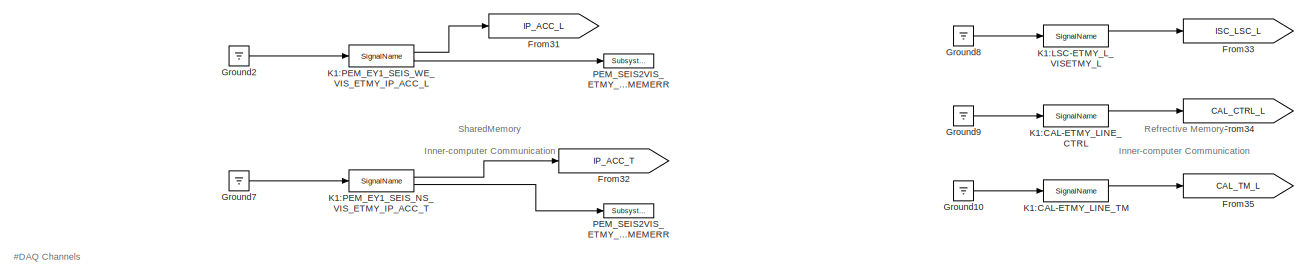
[diagram: root canvas - part 1/6, top center region]
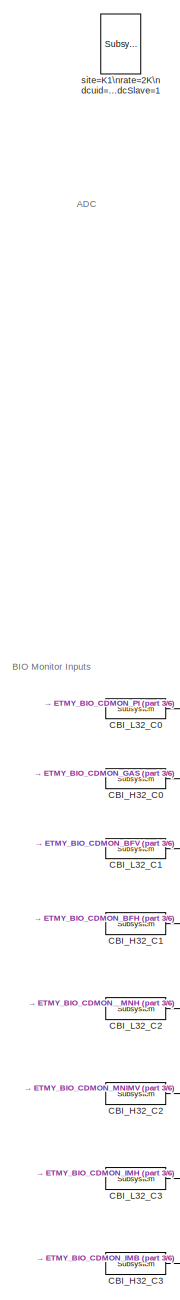
[diagram: root canvas - part 2/6, middle left region]
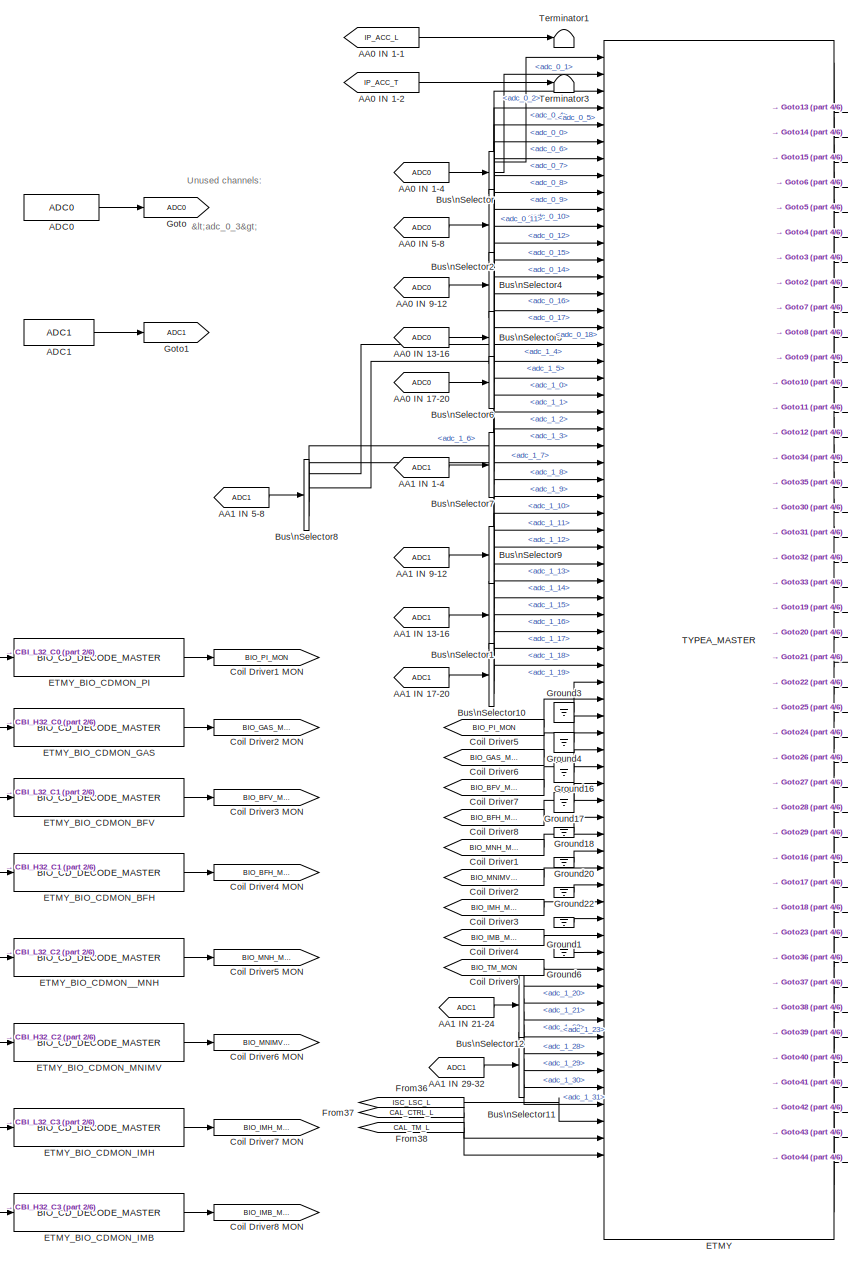
[diagram: root canvas - part 3/6, middle left region]
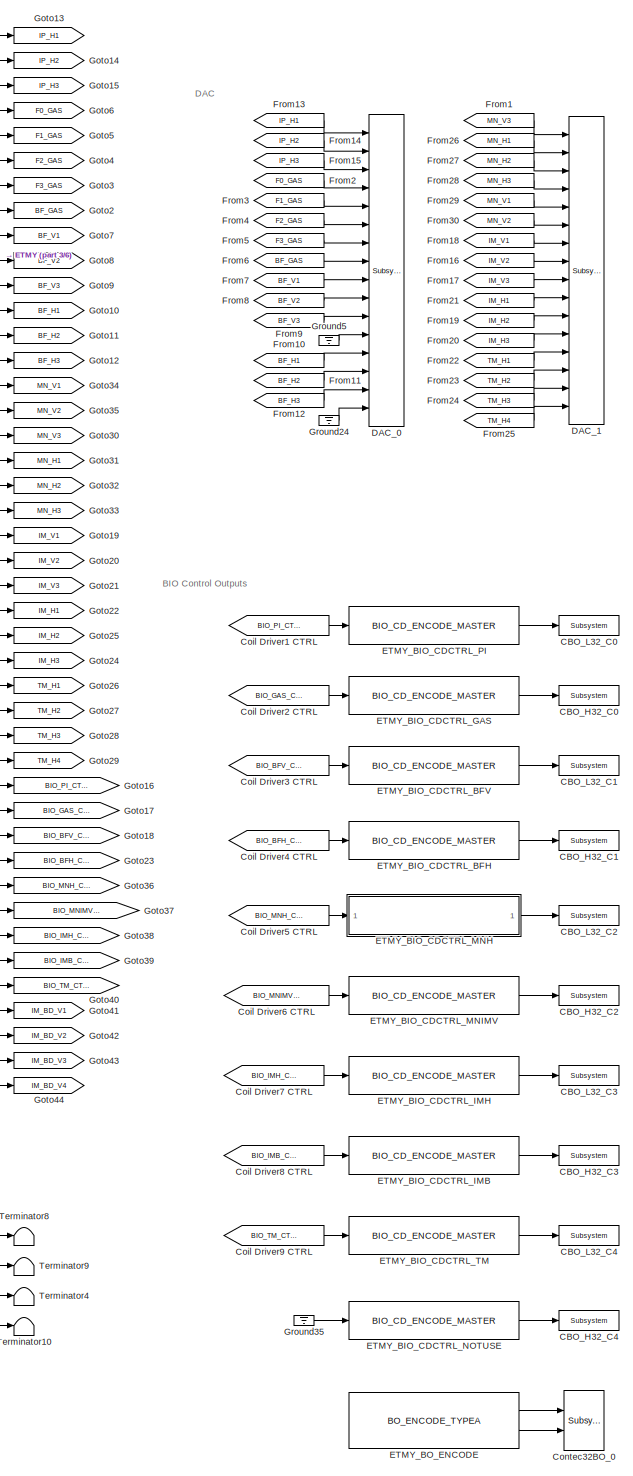
[diagram: root canvas - part 4/6, right side, full height]
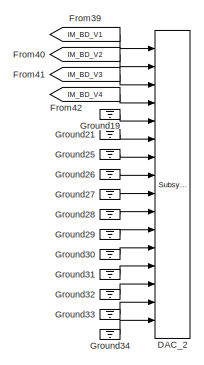
[diagram: root canvas - part 5/6, middle right region]
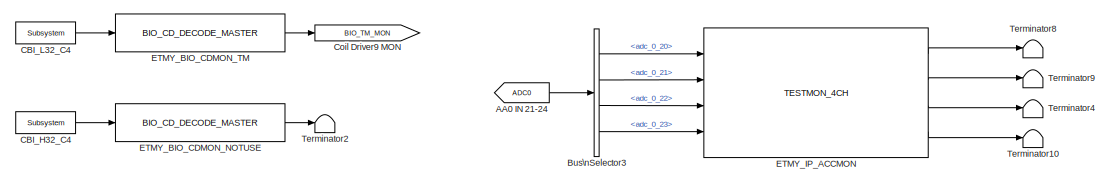
[diagram: root canvas - part 6/6, bottom left region]
MODEL k1visetmy
KIND model
BLOCK [From] AA0 IN 1-1
  GotoTag = IP_ACC_L
  SID = 843
BLOCK [From] AA0 IN 1-2
  GotoTag = IP_ACC_T
  SID = 844
BLOCK [From] AA0 IN 1-4
  GotoTag = ADC0
  SID = 126
BLOCK [From] AA0 IN 13-16
  GotoTag = ADC0
  SID = 184
BLOCK [From] AA0 IN 17-20
  GotoTag = ADC0
  SID = 190
BLOCK [From] AA0 IN 21-24
  GotoTag = ADC0
  SID = 287
BLOCK [From] AA0 IN 5-8
  GotoTag = ADC0
  SID = 182
BLOCK [From] AA0 IN 9-12
  GotoTag = ADC0
  SID = 186
BLOCK [From] AA1 IN 1-4
  GotoTag = ADC1
  SID = 488
BLOCK [From] AA1 IN 13-16
  GotoTag = ADC1
  SID = 536
BLOCK [From] AA1 IN 17-20
  GotoTag = ADC1
  SID = 537
BLOCK [From] AA1 IN 21-24
  GotoTag = ADC1
  SID = 826
BLOCK [From] AA1 IN 29-32
  GotoTag = ADC1
  SID = 803
BLOCK [From] AA1 IN 5-8
  GotoTag = ADC1
  SID = 489
BLOCK [From] AA1 IN 9-12
  GotoTag = ADC1
  SID = 490
BLOCK [Reference] ADC0  REF=cdsAdcx0/ADC0
  AttributesFormatString = %<Description>\\n%<Tag>
  Description = type-GSC_16AI64SSA\ncard_num=0
  Ports = [0, 1]
  SID = 51
  SourceBlock = cdsAdcx0/ADC0
  SourceType = SubSystem
  Tag = cdsAdc
BLOCK [Reference] ADC1  REF=cdsAdcx1/ADC1
  AttributesFormatString = %<Description>\\n%<Tag>
  Description = type-GSC_16AI64SSA\ncard_num=1
  Ports = [0, 1]
  SID = 111
  SourceBlock = cdsAdcx1/ADC1
  SourceType = SubSystem
  Tag = cdsAdc
BLOCK [BusSelector] Bus\nSelector
  OutputSignals = adc_0_0,adc_0_1,adc_0_2
  Ports = [1, 3]
  SID = 157
BLOCK [BusSelector] Bus\nSelector1
  OutputSignals = adc_1_12,adc_1_13,adc_1_14,adc_1_15
  Ports = [1, 4]
  SID = 534
BLOCK [BusSelector] Bus\nSelector10
  OutputSignals = adc_1_16,adc_1_17,adc_1_18,adc_1_19
  Ports = [1, 4]
  SID = 538
BLOCK [BusSelector] Bus\nSelector11
  OutputSignals = adc_1_28,adc_1_29,adc_1_30,adc_1_31
  Ports = [1, 4]
  SID = 805
BLOCK [BusSelector] Bus\nSelector12
  OutputSignals = adc_1_20,adc_1_21,adc_1_22,adc_1_23
  Ports = [1, 4]
  SID = 827
BLOCK [BusSelector] Bus\nSelector2
  OutputSignals = adc_0_4,adc_0_5,adc_0_6,adc_0_7
  Ports = [1, 4]
  SID = 183
BLOCK [BusSelector] Bus\nSelector3
  OutputSignals = adc_0_20,adc_0_21,adc_0_22,adc_0_23
  Ports = [1, 4]
  SID = 286
BLOCK [BusSelector] Bus\nSelector4
  OutputSignals = adc_0_8,adc_0_9,adc_0_10,adc_0_11
  Ports = [1, 4]
  SID = 187
BLOCK [BusSelector] Bus\nSelector5
  OutputSignals = adc_0_12,adc_0_15,adc_0_14
  Ports = [1, 3]
  SID = 189
BLOCK [BusSelector] Bus\nSelector6
  OutputSignals = adc_0_16,adc_0_17,adc_0_18
  Ports = [1, 3]
  SID = 191
BLOCK [BusSelector] Bus\nSelector7
  OutputSignals = adc_1_0,adc_1_1,adc_1_2,adc_1_3
  Ports = [1, 4]
  SID = 485
BLOCK [BusSelector] Bus\nSelector8
  OutputSignals = adc_1_4,adc_1_5,adc_1_6,adc_1_7
  Ports = [1, 4]
  SID = 486
BLOCK [BusSelector] Bus\nSelector9
  OutputSignals = adc_1_8,adc_1_9,adc_1_10,adc_1_11
  Ports = [1, 4]
  SID = 487
BLOCK [Reference] CBI_H32_C0  REF=cdsCDI64/Subsystem
  AttributesFormatString = %<Tag>\\n%<Description>
  Description = card_num=1
  Ports = [0, 1]
  SID = 130
  SourceBlock = cdsCDI64/Subsystem
  SourceType = SubSystem
  Tag = cdsCDI64
BLOCK [Reference] CBI_H32_C1  REF=cdsCDI64/Subsystem
  AttributesFormatString = %<Tag>\\n%<Description>
  Description = card_num=3
  Ports = [0, 1]
  SID = 225
  SourceBlock = cdsCDI64/Subsystem
  SourceType = SubSystem
  Tag = cdsCDI64
BLOCK [Reference] CBI_H32_C2  REF=cdsCDI64/Subsystem
  AttributesFormatString = %<Tag>\\n%<Description>
  Description = card_num=5
  Ports = [0, 1]
  SID = 563
  SourceBlock = cdsCDI64/Subsystem
  SourceType = SubSystem
  Tag = cdsCDI64
BLOCK [Reference] CBI_H32_C3  REF=cdsCDI64/Subsystem
  AttributesFormatString = %<Tag>\\n%<Description>
  Description = card_num=7
  Ports = [0, 1]
  SID = 606
  SourceBlock = cdsCDI64/Subsystem
  SourceType = SubSystem
  Tag = cdsCDI64
BLOCK [Reference] CBI_H32_C4  REF=cdsCDI64/Subsystem
  AttributesFormatString = %<Tag>\\n%<Description>
  Description = card_num=9
  Ports = [0, 1]
  SID = 609
  SourceBlock = cdsCDI64/Subsystem
  SourceType = SubSystem
  Tag = cdsCDI64
BLOCK [Reference] CBI_L32_C0  REF=cdsCDI64/Subsystem
  AttributesFormatString = %<Tag>\\n%<Description>
  Description = card_num=0
  Ports = [0, 1]
  SID = 131
  SourceBlock = cdsCDI64/Subsystem
  SourceType = SubSystem
  Tag = cdsCDI64
BLOCK [Reference] CBI_L32_C1  REF=cdsCDI64/Subsystem
  AttributesFormatString = %<Tag>\\n%<Description>
  Description = card_num=2
  Ports = [0, 1]
  SID = 226
  SourceBlock = cdsCDI64/Subsystem
  SourceType = SubSystem
  Tag = cdsCDI64
BLOCK [Reference] CBI_L32_C2  REF=cdsCDI64/Subsystem
  AttributesFormatString = %<Tag>\\n%<Description>
  Description = card_num=4
  Ports = [0, 1]
  SID = 562
  SourceBlock = cdsCDI64/Subsystem
  SourceType = SubSystem
  Tag = cdsCDI64
BLOCK [Reference] CBI_L32_C3  REF=cdsCDI64/Subsystem
  AttributesFormatString = %<Tag>\\n%<Description>
  Description = card_num=6
  Ports = [0, 1]
  SID = 605
  SourceBlock = cdsCDI64/Subsystem
  SourceType = SubSystem
  Tag = cdsCDI64
BLOCK [Reference] CBI_L32_C4  REF=cdsCDI64/Subsystem
  AttributesFormatString = %<Tag>\\n%<Description>
  Description = card_num=8
  Ports = [0, 1]
  SID = 607
  SourceBlock = cdsCDI64/Subsystem
  SourceType = SubSystem
  Tag = cdsCDI64
BLOCK [Reference] CBO_H32_C0  REF=cdsCDO64/Subsystem
  AttributesFormatString = %<Tag>\\n%<Description>
  Description = card_num=1
  Ports = [1]
  SID = 132
  SourceBlock = cdsCDO64/Subsystem
  SourceType = SubSystem
  Tag = cdsCDO64
BLOCK [Reference] CBO_H32_C1  REF=cdsCDO64/Subsystem
  AttributesFormatString = %<Tag>\\n%<Description>
  Description = card_num=3
  Ports = [1]
  SID = 227
  SourceBlock = cdsCDO64/Subsystem
  SourceType = SubSystem
  Tag = cdsCDO64
BLOCK [Reference] CBO_H32_C2  REF=cdsCDO64/Subsystem
  AttributesFormatString = %<Tag>\\n%<Description>
  Description = card_num=5
  Ports = [1]
  SID = 553
  SourceBlock = cdsCDO64/Subsystem
  SourceType = SubSystem
  Tag = cdsCDO64
BLOCK [Reference] CBO_H32_C3  REF=cdsCDO64/Subsystem
  AttributesFormatString = %<Tag>\\n%<Description>
  Description = card_num=7
  Ports = [1]
  SID = 615
  SourceBlock = cdsCDO64/Subsystem
  SourceType = SubSystem
  Tag = cdsCDO64
BLOCK [Reference] CBO_H32_C4  REF=cdsCDO64/Subsystem
  AttributesFormatString = %<Tag>\\n%<Description>
  Description = card_num=9
  Ports = [1]
  SID = 617
  SourceBlock = cdsCDO64/Subsystem
  SourceType = SubSystem
  Tag = cdsCDO64
BLOCK [Reference] CBO_L32_C0  REF=cdsCDO64/Subsystem
  AttributesFormatString = %<Tag>\\n%<Description>
  Description = card_num=0
  Ports = [1]
  SID = 133
  SourceBlock = cdsCDO64/Subsystem
  SourceType = SubSystem
  Tag = cdsCDO64
BLOCK [Reference] CBO_L32_C1  REF=cdsCDO64/Subsystem
  AttributesFormatString = %<Tag>\\n%<Description>
  Description = card_num=2
  Ports = [1]
  SID = 228
  SourceBlock = cdsCDO64/Subsystem
  SourceType = SubSystem
  Tag = cdsCDO64
BLOCK [Reference] CBO_L32_C2  REF=cdsCDO64/Subsystem
  AttributesFormatString = %<Tag>\\n%<Description>
  Description = card_num=4
  Ports = [1]
  SID = 552
  SourceBlock = cdsCDO64/Subsystem
  SourceType = SubSystem
  Tag = cdsCDO64
BLOCK [Reference] CBO_L32_C3  REF=cdsCDO64/Subsystem
  AttributesFormatString = %<Tag>\\n%<Description>
  Description = card_num=6
  Ports = [1]
  SID = 614
  SourceBlock = cdsCDO64/Subsystem
  SourceType = SubSystem
  Tag = cdsCDO64
BLOCK [Reference] CBO_L32_C4  REF=cdsCDO64/Subsystem
  AttributesFormatString = %<Tag>\\n%<Description>
  Description = card_num=8
  Ports = [1]
  SID = 616
  SourceBlock = cdsCDO64/Subsystem
  SourceType = SubSystem
  Tag = cdsCDO64
BLOCK [From] Coil Driver1
  GotoTag = BIO_MNH_MON
  SID = 566
BLOCK [From] Coil Driver1 CTRL
  GotoTag = BIO_PI_CTRL
  SID = 247
BLOCK [Goto] Coil Driver1 MON
  GotoTag = BIO_PI_MON
  SID = 258
BLOCK [From] Coil Driver2
  GotoTag = BIO_MNIMV_MON
  SID = 567
BLOCK [From] Coil Driver2 CTRL
  GotoTag = BIO_GAS_CTRL
  SID = 253
BLOCK [Goto] Coil Driver2 MON
  GotoTag = BIO_GAS_MON
  SID = 259
BLOCK [From] Coil Driver3
  GotoTag = BIO_IMH_MON
  SID = 623
BLOCK [From] Coil Driver3 CTRL
  GotoTag = BIO_BFV_CTRL
  SID = 254
BLOCK [Goto] Coil Driver3 MON
  GotoTag = BIO_BFV_MON
  SID = 260
BLOCK [From] Coil Driver4
  GotoTag = BIO_IMB_MON
  SID = 624
BLOCK [From] Coil Driver4 CTRL
  GotoTag = BIO_BFH_CTRL
  SID = 265
BLOCK [Goto] Coil Driver4 MON
  GotoTag = BIO_BFH_MON
  SID = 261
BLOCK [From] Coil Driver5
  GotoTag = BIO_PI_MON
  SID = 266
BLOCK [From] Coil Driver5 CTRL
  GotoTag = BIO_MNH_CTRL
  SID = 557
BLOCK [Goto] Coil Driver5 MON
  GotoTag = BIO_MNH_MON
  SID = 564
BLOCK [From] Coil Driver6
  GotoTag = BIO_GAS_MON
  SID = 267
BLOCK [From] Coil Driver6 CTRL
  GotoTag = BIO_MNIMV_CTRL
  SID = 558
BLOCK [Goto] Coil Driver6 MON
  GotoTag = BIO_MNIMV_MON
  SID = 565
BLOCK [From] Coil Driver7
  GotoTag = BIO_BFV_MON
  SID = 268
BLOCK [From] Coil Driver7 CTRL
  GotoTag = BIO_IMH_CTRL
  SID = 630
BLOCK [Goto] Coil Driver7 MON
  GotoTag = BIO_IMH_MON
  SID = 620
BLOCK [From] Coil Driver8
  GotoTag = BIO_BFH_MON
  SID = 269
BLOCK [From] Coil Driver8 CTRL
  GotoTag = BIO_IMB_CTRL
  SID = 629
BLOCK [Goto] Coil Driver8 MON
  GotoTag = BIO_IMB_MON
  SID = 621
BLOCK [From] Coil Driver9
  GotoTag = BIO_TM_MON
  SID = 625
BLOCK [From] Coil Driver9 CTRL
  GotoTag = BIO_TM_CTRL
  SID = 631
BLOCK [Goto] Coil Driver9 MON
  GotoTag = BIO_TM_MON
  SID = 622
BLOCK [Reference] Contec32BO_0  REF=cdsCDO32/Subsystem
  AttributesFormatString = %<Tag>
  Description = Contec32 bit binary output module driver
  Ports = [2]
  SID = 644
  SourceBlock = cdsCDO32/Subsystem
  SourceType = SubSystem
  Tag = cdsCDO32
BLOCK [Reference] DAC_0  REF=dac/Subsystem  (lib defined in slx_40ef132df75b, slx_b7657ccccc5b, +4 more)
  AttributesFormatString = %<Description>
  Description = type=GSC_16AO16,\ncard_num=0
  Ports = [16]
  SID = 5
  SourceBlock = dac/Subsystem
  SourceType = SubSystem
BLOCK [Reference] DAC_1  REF=dac/Subsystem  (lib defined in slx_40ef132df75b, slx_b7657ccccc5b, +4 more)
  AttributesFormatString = %<Description>
  Description = type=GSC_16AO16,\ncard_num=1
  Ports = [16]
  SID = 112
  SourceBlock = dac/Subsystem
  SourceType = SubSystem
BLOCK [Reference] DAC_2  REF=dac/Subsystem  (lib defined in slx_40ef132df75b, slx_b7657ccccc5b, +4 more)
  AttributesFormatString = %<Description>
  Description = type=GSC_16AO16,\ncard_num=2
  Ports = [16]
  SID = 585
  SourceBlock = dac/Subsystem
  SourceType = SubSystem
BLOCK [Reference] ETMY  REF=TYPEA_MASTER/TYPEA_MASTER
  Ports = [70, 43]
  SID = 114
  SourceBlock = TYPEA_MASTER/TYPEA_MASTER
  SourceType = SubSystem
BLOCK [Reference] ETMY_BIO_CDCTRL_BFH  REF=BIO_CD_ENCODE_MASTER/BIO_CD_ENCODE_MASTER
  Ports = [1, 1]
  SID = 244
  SourceBlock = BIO_CD_ENCODE_MASTER/BIO_CD_ENCODE_MASTER
  SourceType = SubSystem
BLOCK [Reference] ETMY_BIO_CDCTRL_BFV  REF=BIO_CD_ENCODE_MASTER/BIO_CD_ENCODE_MASTER
  Ports = [1, 1]
  SID = 243
  SourceBlock = BIO_CD_ENCODE_MASTER/BIO_CD_ENCODE_MASTER
  SourceType = SubSystem
BLOCK [Reference] ETMY_BIO_CDCTRL_GAS  REF=BIO_CD_ENCODE_MASTER/BIO_CD_ENCODE_MASTER
  Ports = [1, 1]
  SID = 242
  SourceBlock = BIO_CD_ENCODE_MASTER/BIO_CD_ENCODE_MASTER
  SourceType = SubSystem
BLOCK [Reference] ETMY_BIO_CDCTRL_IMB  REF=BIO_CD_ENCODE_MASTER/BIO_CD_ENCODE_MASTER
  Ports = [1, 1]
  SID = 611
  SourceBlock = BIO_CD_ENCODE_MASTER/BIO_CD_ENCODE_MASTER
  SourceType = SubSystem
BLOCK [Reference] ETMY_BIO_CDCTRL_IMH  REF=BIO_CD_ENCODE_MASTER/BIO_CD_ENCODE_MASTER
  Ports = [1, 1]
  SID = 610
  SourceBlock = BIO_CD_ENCODE_MASTER/BIO_CD_ENCODE_MASTER
  SourceType = SubSystem
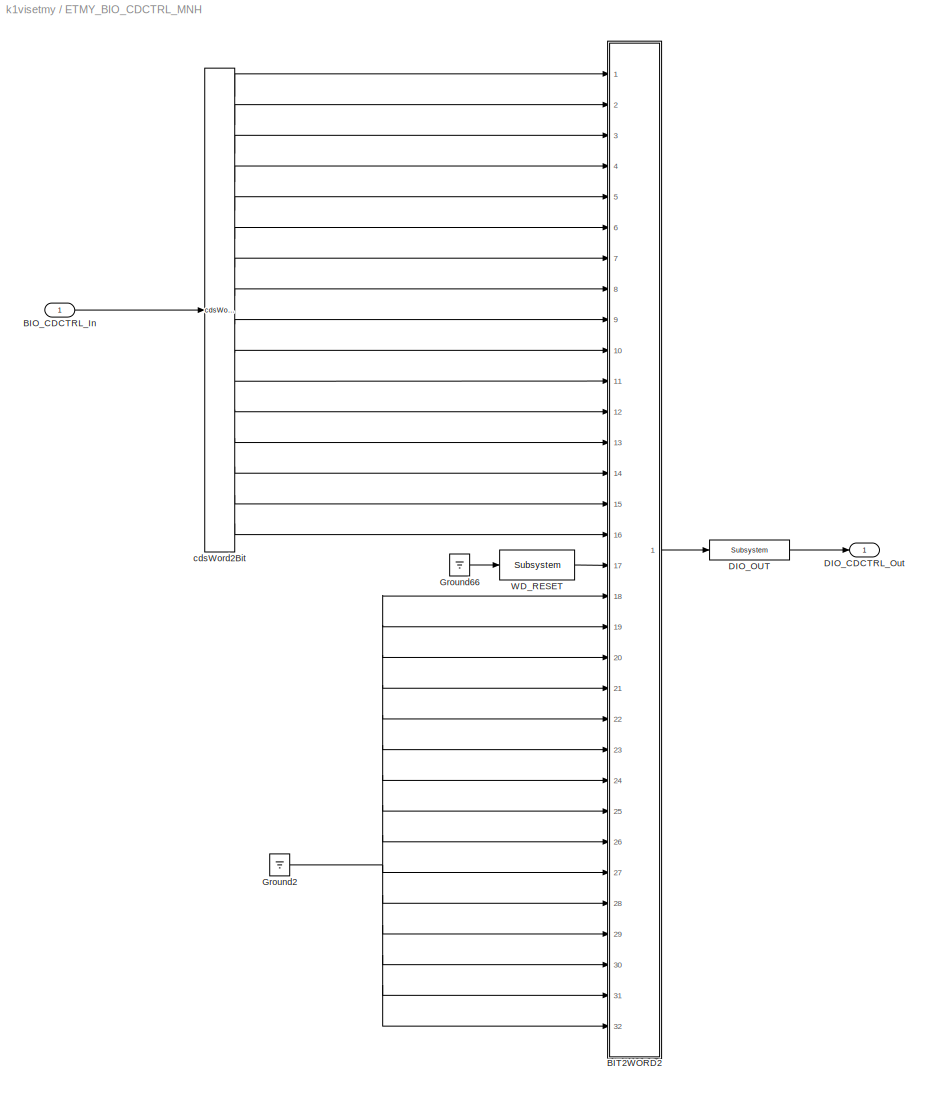
BLOCK [SubSystem] ETMY_BIO_CDCTRL_MNH
  Ports = [1, 1]
  RequestExecContextInheritance = off
  SID = 550
  Variant = off
BLOCK [Inport] ETMY_BIO_CDCTRL_MNH/BIO_CDCTRL_In
  IconDisplay = Port number
  SID = 646
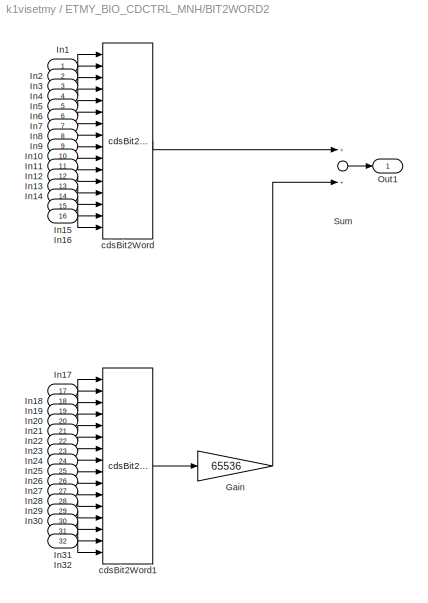
BLOCK [SubSystem] ETMY_BIO_CDCTRL_MNH/BIT2WORD2
  Ports = [32, 1]
  RequestExecContextInheritance = off
  SID = 647
  Variant = off
BLOCK [Gain] ETMY_BIO_CDCTRL_MNH/BIT2WORD2/Gain
  Gain = 65536
  OutDataTypeStr = Inherit: Inherit via internal rule
  ParamDataTypeStr = Inherit: Inherit via internal rule
  SID = 680
  SaturateOnIntegerOverflow = off
BLOCK [Inport] ETMY_BIO_CDCTRL_MNH/BIT2WORD2/In1
  IconDisplay = Port number
  SID = 648
BLOCK [Inport] ETMY_BIO_CDCTRL_MNH/BIT2WORD2/In10
  IconDisplay = Port number
  Port = 10
  SID = 657
BLOCK [Inport] ETMY_BIO_CDCTRL_MNH/BIT2WORD2/In11
  IconDisplay = Port number
  Port = 11
  SID = 658
BLOCK [Inport] ETMY_BIO_CDCTRL_MNH/BIT2WORD2/In12
  IconDisplay = Port number
  Port = 12
  SID = 659
BLOCK [Inport] ETMY_BIO_CDCTRL_MNH/BIT2WORD2/In13
  IconDisplay = Port number
  Port = 13
  SID = 660
BLOCK [Inport] ETMY_BIO_CDCTRL_MNH/BIT2WORD2/In14
  IconDisplay = Port number
  Port = 14
  SID = 661
BLOCK [Inport] ETMY_BIO_CDCTRL_MNH/BIT2WORD2/In15
  IconDisplay = Port number
  Port = 15
  SID = 662
BLOCK [Inport] ETMY_BIO_CDCTRL_MNH/BIT2WORD2/In16
  IconDisplay = Port number
  Port = 16
  SID = 663
BLOCK [Inport] ETMY_BIO_CDCTRL_MNH/BIT2WORD2/In17
  IconDisplay = Port number
  Port = 17
  SID = 664
BLOCK [Inport] ETMY_BIO_CDCTRL_MNH/BIT2WORD2/In18
  IconDisplay = Port number
  Port = 18
  SID = 665
BLOCK [Inport] ETMY_BIO_CDCTRL_MNH/BIT2WORD2/In19
  IconDisplay = Port number
  Port = 19
  SID = 666
BLOCK [Inport] ETMY_BIO_CDCTRL_MNH/BIT2WORD2/In2
  IconDisplay = Port number
  Port = 2
  SID = 649
BLOCK [Inport] ETMY_BIO_CDCTRL_MNH/BIT2WORD2/In20
  IconDisplay = Port number
  Port = 20
  SID = 667
BLOCK [Inport] ETMY_BIO_CDCTRL_MNH/BIT2WORD2/In21
  IconDisplay = Port number
  Port = 21
  SID = 668
BLOCK [Inport] ETMY_BIO_CDCTRL_MNH/BIT2WORD2/In22
  IconDisplay = Port number
  Port = 22
  SID = 669
BLOCK [Inport] ETMY_BIO_CDCTRL_MNH/BIT2WORD2/In23
  IconDisplay = Port number
  Port = 23
  SID = 670
BLOCK [Inport] ETMY_BIO_CDCTRL_MNH/BIT2WORD2/In24
  IconDisplay = Port number
  Port = 24
  SID = 671
BLOCK [Inport] ETMY_BIO_CDCTRL_MNH/BIT2WORD2/In25
  IconDisplay = Port number
  Port = 25
  SID = 672
BLOCK [Inport] ETMY_BIO_CDCTRL_MNH/BIT2WORD2/In26
  IconDisplay = Port number
  Port = 26
  SID = 673
BLOCK [Inport] ETMY_BIO_CDCTRL_MNH/BIT2WORD2/In27
  IconDisplay = Port number
  Port = 27
  SID = 674
BLOCK [Inport] ETMY_BIO_CDCTRL_MNH/BIT2WORD2/In28
  IconDisplay = Port number
  Port = 28
  SID = 675
BLOCK [Inport] ETMY_BIO_CDCTRL_MNH/BIT2WORD2/In29
  IconDisplay = Port number
  Port = 29
  SID = 676
BLOCK [Inport] ETMY_BIO_CDCTRL_MNH/BIT2WORD2/In3
  IconDisplay = Port number
  Port = 3
  SID = 650
BLOCK [Inport] ETMY_BIO_CDCTRL_MNH/BIT2WORD2/In30
  IconDisplay = Port number
  Port = 30
  SID = 677
BLOCK [Inport] ETMY_BIO_CDCTRL_MNH/BIT2WORD2/In31
  IconDisplay = Port number
  Port = 31
  SID = 678
BLOCK [Inport] ETMY_BIO_CDCTRL_MNH/BIT2WORD2/In32
  IconDisplay = Port number
  Port = 32
  SID = 679
BLOCK [Inport] ETMY_BIO_CDCTRL_MNH/BIT2WORD2/In4
  IconDisplay = Port number
  Port = 4
  SID = 651
BLOCK [Inport] ETMY_BIO_CDCTRL_MNH/BIT2WORD2/In5
  IconDisplay = Port number
  Port = 5
  SID = 652
BLOCK [Inport] ETMY_BIO_CDCTRL_MNH/BIT2WORD2/In6
  IconDisplay = Port number
  Port = 6
  SID = 653
BLOCK [Inport] ETMY_BIO_CDCTRL_MNH/BIT2WORD2/In7
  IconDisplay = Port number
  Port = 7
  SID = 654
BLOCK [Inport] ETMY_BIO_CDCTRL_MNH/BIT2WORD2/In8
  IconDisplay = Port number
  Port = 8
  SID = 655
BLOCK [Inport] ETMY_BIO_CDCTRL_MNH/BIT2WORD2/In9
  IconDisplay = Port number
  Port = 9
  SID = 656
BLOCK [Outport] ETMY_BIO_CDCTRL_MNH/BIT2WORD2/Out1
  IconDisplay = Port number
  SID = 684
BLOCK [Sum] ETMY_BIO_CDCTRL_MNH/BIT2WORD2/Sum
  InputSameDT = off
  OutDataTypeStr = Inherit: Inherit via internal rule
  Ports = [2, 1]
  SID = 681
  SaturateOnIntegerOverflow = off
BLOCK [Reference] ETMY_BIO_CDCTRL_MNH/BIT2WORD2/cdsBit2Word  REF=cdsBit2Word/cdsBit2Word
  AttributesFormatString = %<Tag>
  Description = Forms single 16 bit integer from 16 0/1 inputs.
  Ports = [16, 1]
  SID = 682
  SourceBlock = cdsBit2Word/cdsBit2Word
  SourceType = SubSystem
  Tag = cdsBit2Word
BLOCK [Reference] ETMY_BIO_CDCTRL_MNH/BIT2WORD2/cdsBit2Word1  REF=cdsBit2Word/cdsBit2Word
  AttributesFormatString = %<Tag>
  Description = Forms single 16 bit integer from 16 0/1 inputs.
  Ports = [16, 1]
  SID = 683
  SourceBlock = cdsBit2Word/cdsBit2Word
  SourceType = SubSystem
  Tag = cdsBit2Word
BLOCK [Outport] ETMY_BIO_CDCTRL_MNH/DIO_CDCTRL_Out
  IconDisplay = Port number
  SID = 690
BLOCK [Reference] ETMY_BIO_CDCTRL_MNH/DIO_OUT  REF=cdsEpicsOut/Subsystem
  AttributesFormatString = %<Tag>
  Description = Purpose:                                          \nOutput a FE signal to an EPICS channel.           \n                                                  \nOperation:                                        \nTakes input value and passes it to EPICS record.  \n                                                  \nUsage:                                            \nName the part with the desired EPICS...<+14ch>  <repeated x3 — deduplicated; at blocks: DIO_OUT, PEM_SEIS2VIS_ETMY_IP_ACC_L_SHMEMERR, PEM_SEIS2VIS_ETMY_IP_ACC_T_SHMEMERR>
  Ports = [1, 1]
  SID = 685
  SourceBlock = cdsEpicsOut/Subsystem
  SourceType = SubSystem
  Tag = cdsEpicsOutput
BLOCK [Ground] ETMY_BIO_CDCTRL_MNH/Ground2
  SID = 799
BLOCK [Ground] ETMY_BIO_CDCTRL_MNH/Ground66
  SID = 800
BLOCK [Reference] ETMY_BIO_CDCTRL_MNH/WD_RESET  REF=cdsEpicsBinIn/Subsystem
  AttributesFormatString = %<Tag>
  Description = Purpose:                                                                            \nCreate an EPICS binary (0 or 1) input channel to the FE realtime controls.          \n                                                                                    \nOperation:                                                                          \nOutputs value from an EPICS ai record. Value is binary i...<+252ch>
  Ports = [1, 1]
  SID = 801
  SourceBlock = cdsEpicsBinIn/Subsystem
  SourceType = SubSystem
  Tag = cdsEpicsBinIn
BLOCK [Reference] ETMY_BIO_CDCTRL_MNH/cdsWord2Bit  REF=cdsWord2Bit/cdsWord2Bit
  AttributesFormatString = cdsWord2Bit
  Description = Generate 16 0/1 outputs from single 16-bit integer input
  Ports = [1, 16]
  SID = 689
  SourceBlock = cdsWord2Bit/cdsWord2Bit
  SourceType = SubSystem
  Tag = cdsWord2Bit
BLOCK [Reference] ETMY_BIO_CDCTRL_MNIMV  REF=BIO_CD_ENCODE_MASTER/BIO_CD_ENCODE_MASTER
  Ports = [1, 1]
  SID = 551
  SourceBlock = BIO_CD_ENCODE_MASTER/BIO_CD_ENCODE_MASTER
  SourceType = SubSystem
BLOCK [Reference] ETMY_BIO_CDCTRL_NOTUSE  REF=BIO_CD_ENCODE_MASTER/BIO_CD_ENCODE_MASTER
  Ports = [1, 1]
  SID = 613
  SourceBlock = BIO_CD_ENCODE_MASTER/BIO_CD_ENCODE_MASTER
  SourceType = SubSystem
BLOCK [Reference] ETMY_BIO_CDCTRL_PI  REF=BIO_CD_ENCODE_MASTER/BIO_CD_ENCODE_MASTER
  Ports = [1, 1]
  SID = 240
  SourceBlock = BIO_CD_ENCODE_MASTER/BIO_CD_ENCODE_MASTER
  SourceType = SubSystem
BLOCK [Reference] ETMY_BIO_CDCTRL_TM  REF=BIO_CD_ENCODE_MASTER/BIO_CD_ENCODE_MASTER
  Ports = [1, 1]
  SID = 612
  SourceBlock = BIO_CD_ENCODE_MASTER/BIO_CD_ENCODE_MASTER
  SourceType = SubSystem
BLOCK [Reference] ETMY_BIO_CDMON_BFH  REF=BIO_CD_DECODE_MASTER/BIO_CD_DECODE_MASTER
  Ports = [1, 1]
  SID = 239
  SourceBlock = BIO_CD_DECODE_MASTER/BIO_CD_DECODE_MASTER
  SourceType = SubSystem
BLOCK [Reference] ETMY_BIO_CDMON_BFV  REF=BIO_CD_DECODE_MASTER/BIO_CD_DECODE_MASTER
  Ports = [1, 1]
  SID = 238
  SourceBlock = BIO_CD_DECODE_MASTER/BIO_CD_DECODE_MASTER
  SourceType = SubSystem
BLOCK [Reference] ETMY_BIO_CDMON_GAS  REF=BIO_CD_DECODE_MASTER/BIO_CD_DECODE_MASTER
  Ports = [1, 1]
  SID = 237
  SourceBlock = BIO_CD_DECODE_MASTER/BIO_CD_DECODE_MASTER
  SourceType = SubSystem
BLOCK [Reference] ETMY_BIO_CDMON_IMB  REF=BIO_CD_DECODE_MASTER/BIO_CD_DECODE_MASTER
  Ports = [1, 1]
  SID = 603
  SourceBlock = BIO_CD_DECODE_MASTER/BIO_CD_DECODE_MASTER
  SourceType = SubSystem
BLOCK [Reference] ETMY_BIO_CDMON_IMH  REF=BIO_CD_DECODE_MASTER/BIO_CD_DECODE_MASTER
  Ports = [1, 1]
  SID = 602
  SourceBlock = BIO_CD_DECODE_MASTER/BIO_CD_DECODE_MASTER
  SourceType = SubSystem
BLOCK [Reference] ETMY_BIO_CDMON_MNIMV  REF=BIO_CD_DECODE_MASTER/BIO_CD_DECODE_MASTER
  Ports = [1, 1]
  SID = 561
  SourceBlock = BIO_CD_DECODE_MASTER/BIO_CD_DECODE_MASTER
  SourceType = SubSystem
BLOCK [Reference] ETMY_BIO_CDMON_NOTUSE  REF=BIO_CD_DECODE_MASTER/BIO_CD_DECODE_MASTER
  Ports = [1, 1]
  SID = 608
  SourceBlock = BIO_CD_DECODE_MASTER/BIO_CD_DECODE_MASTER
  SourceType = SubSystem
BLOCK [Reference] ETMY_BIO_CDMON_PI  REF=BIO_CD_DECODE_MASTER/BIO_CD_DECODE_MASTER
  Ports = [1, 1]
  SID = 235
  SourceBlock = BIO_CD_DECODE_MASTER/BIO_CD_DECODE_MASTER
  SourceType = SubSystem
BLOCK [Reference] ETMY_BIO_CDMON_TM  REF=BIO_CD_DECODE_MASTER/BIO_CD_DECODE_MASTER
  Ports = [1, 1]
  SID = 604
  SourceBlock = BIO_CD_DECODE_MASTER/BIO_CD_DECODE_MASTER
  SourceType = SubSystem
BLOCK [Reference] ETMY_BIO_CDMON__MNH  REF=BIO_CD_DECODE_MASTER/BIO_CD_DECODE_MASTER
  Ports = [1, 1]
  SID = 560
  SourceBlock = BIO_CD_DECODE_MASTER/BIO_CD_DECODE_MASTER
  SourceType = SubSystem
BLOCK [Reference] ETMY_BO_ENCODE  REF=BO_TYPEA_MASTER/BO_ENCODE_TYPEA
  Ports = [0, 2]
  SID = 645
  SourceBlock = BO_TYPEA_MASTER/BO_ENCODE_TYPEA
  SourceType = SubSystem
BLOCK [Reference] ETMY_IP_ACCMON  REF=TESTMON_4CH_MASTER/TESTMON_4CH
  Ports = [4, 4]
  SID = 285
  SourceBlock = TESTMON_4CH_MASTER/TESTMON_4CH
  SourceType = SubSystem
BLOCK [From] From1
  GotoTag = MN_V3
  SID = 518
BLOCK [From] From10
  GotoTag = BF_H1
  SID = 215
BLOCK [From] From11
  GotoTag = BF_H2
  SID = 216
BLOCK [From] From12
  GotoTag = BF_H3
  SID = 217
BLOCK [From] From13
  GotoTag = IP_H1
  SID = 221
BLOCK [From] From14
  GotoTag = IP_H2
  SID = 222
BLOCK [From] From15
  GotoTag = IP_H3
  SID = 223
BLOCK [From] From16
  GotoTag = IM_V2
  SID = 519
BLOCK [From] From17
  GotoTag = IM_V3
  SID = 520
BLOCK [From] From18
  GotoTag = IM_V1
  SID = 521
BLOCK [From] From19
  GotoTag = IM_H2
  SID = 522
BLOCK [From] From2
  GotoTag = F0_GAS
  SID = 152
BLOCK [From] From20
  GotoTag = IM_H3
  SID = 523
BLOCK [From] From21
  GotoTag = IM_H1
  SID = 524
BLOCK [From] From22
  GotoTag = TM_H1
  SID = 525
BLOCK [From] From23
  GotoTag = TM_H2
  SID = 526
BLOCK [From] From24
  GotoTag = TM_H3
  SID = 527
BLOCK [From] From25
  GotoTag = TM_H4
  SID = 528
BLOCK [From] From26
  GotoTag = MN_H1
  SID = 529
BLOCK [From] From27
  GotoTag = MN_H2
  SID = 530
BLOCK [From] From28
  GotoTag = MN_H3
  SID = 531
BLOCK [From] From29
  GotoTag = MN_V1
  SID = 532
BLOCK [From] From3
  GotoTag = F1_GAS
  SID = 153
BLOCK [From] From30
  GotoTag = MN_V2
  SID = 533
BLOCK [Goto] From31
  GotoTag = IP_ACC_L
  SID = 830
BLOCK [Goto] From32
  GotoTag = IP_ACC_T
  SID = 838
BLOCK [Goto] From33
  GotoTag = ISC_LSC_L
  SID = 845
BLOCK [Goto] From34
  GotoTag = CAL_CTRL_L
  SID = 846
BLOCK [Goto] From35
  GotoTag = CAL_TM_L
  SID = 860
BLOCK [From] From36
  GotoTag = ISC_LSC_L
  SID = 862
BLOCK [From] From37
  GotoTag = CAL_CTRL_L
  SID = 863
BLOCK [From] From38
  GotoTag = CAL_TM_L
  SID = 864
BLOCK [From] From39
  GotoTag = IM_BD_V1
  SID = 874
BLOCK [From] From4
  GotoTag = F2_GAS
  SID = 154
BLOCK [From] From40
  GotoTag = IM_BD_V2
  SID = 875
BLOCK [From] From41
  GotoTag = IM_BD_V3
  SID = 876
BLOCK [From] From42
  GotoTag = IM_BD_V4
  SID = 877
BLOCK [From] From5
  GotoTag = F3_GAS
  SID = 155
BLOCK [From] From6
  GotoTag = BF_GAS
  SID = 156
BLOCK [From] From7
  GotoTag = BF_V1
  SID = 212
BLOCK [From] From8
  GotoTag = BF_V2
  SID = 213
BLOCK [From] From9
  GotoTag = BF_V3
  SID = 214
BLOCK [Goto] Goto
  GotoTag = ADC0
  SID = 125
BLOCK [Goto] Goto1
  GotoTag = ADC1
  SID = 491
BLOCK [Goto] Goto10
  GotoTag = BF_H1
  SID = 209
BLOCK [Goto] Goto11
  GotoTag = BF_H2
  SID = 210
BLOCK [Goto] Goto12
  GotoTag = BF_H3
  SID = 211
BLOCK [Goto] Goto13
  GotoTag = IP_H1
  SID = 218
BLOCK [Goto] Goto14
  GotoTag = IP_H2
  SID = 219
BLOCK [Goto] Goto15
  GotoTag = IP_H3
  SID = 220
BLOCK [Goto] Goto16
  GotoTag = BIO_PI_CTRL
  SID = 248
BLOCK [Goto] Goto17
  GotoTag = BIO_GAS_CTRL
  SID = 251
BLOCK [Goto] Goto18
  GotoTag = BIO_BFV_CTRL
  SID = 252
BLOCK [Goto] Goto19
  GotoTag = IM_V1
  SID = 492
BLOCK [Goto] Goto2
  GotoTag = BF_GAS
  SID = 177
BLOCK [Goto] Goto20
  GotoTag = IM_V2
  SID = 493
BLOCK [Goto] Goto21
  GotoTag = IM_V3
  SID = 494
BLOCK [Goto] Goto22
  GotoTag = IM_H1
  SID = 495
BLOCK [Goto] Goto23
  GotoTag = BIO_BFH_CTRL
  SID = 264
BLOCK [Goto] Goto24
  GotoTag = IM_H3
  SID = 496
BLOCK [Goto] Goto25
  GotoTag = IM_H2
  SID = 497
BLOCK [Goto] Goto26
  GotoTag = TM_H1
  SID = 498
BLOCK [Goto] Goto27
  GotoTag = TM_H2
  SID = 499
BLOCK [Goto] Goto28
  GotoTag = TM_H3
  SID = 500
BLOCK [Goto] Goto29
  GotoTag = TM_H4
  SID = 501
BLOCK [Goto] Goto3
  GotoTag = F3_GAS
  SID = 148
BLOCK [Goto] Goto30
  GotoTag = MN_V3
  SID = 502
BLOCK [Goto] Goto31
  GotoTag = MN_H1
  SID = 503
BLOCK [Goto] Goto32
  GotoTag = MN_H2
  SID = 504
BLOCK [Goto] Goto33
  GotoTag = MN_H3
  SID = 505
BLOCK [Goto] Goto34
  GotoTag = MN_V1
  SID = 506
BLOCK [Goto] Goto35
  GotoTag = MN_V2
  SID = 507
BLOCK [Goto] Goto36
  GotoTag = BIO_MNH_CTRL
  SID = 554
BLOCK [Goto] Goto37
  GotoTag = BIO_MNIMV_CTRL
  SID = 555
BLOCK [Goto] Goto38
  GotoTag = BIO_IMH_CTRL
  SID = 626
BLOCK [Goto] Goto39
  GotoTag = BIO_IMB_CTRL
  SID = 627
BLOCK [Goto] Goto4
  GotoTag = F2_GAS
  SID = 149
BLOCK [Goto] Goto40
  GotoTag = BIO_TM_CTRL
  SID = 628
BLOCK [Goto] Goto41
  GotoTag = IM_BD_V1
  SID = 870
BLOCK [Goto] Goto42
  GotoTag = IM_BD_V2
  SID = 871
BLOCK [Goto] Goto43
  GotoTag = IM_BD_V3
  SID = 872
BLOCK [Goto] Goto44
  GotoTag = IM_BD_V4
  SID = 873
BLOCK [Goto] Goto5
  GotoTag = F1_GAS
  SID = 150
BLOCK [Goto] Goto6
  GotoTag = F0_GAS
  SID = 151
BLOCK [Goto] Goto7
  GotoTag = BF_V1
  SID = 206
BLOCK [Goto] Goto8
  GotoTag = BF_V2
  SID = 207
BLOCK [Goto] Goto9
  GotoTag = BF_V3
  SID = 208
BLOCK [Ground] Ground1
  SID = 540
BLOCK [Ground] Ground10
  SID = 861
BLOCK [Ground] Ground16
  SID = 272
BLOCK [Ground] Ground17
  SID = 273
BLOCK [Ground] Ground18
  SID = 274
BLOCK [Ground] Ground19
  SID = 590
BLOCK [Ground] Ground2
  SID = 831
BLOCK [Ground] Ground20
  SID = 276
BLOCK [Ground] Ground21
  SID = 591
BLOCK [Ground] Ground22
  SID = 278
BLOCK [Ground] Ground24
  SID = 304
BLOCK [Ground] Ground25
  SID = 592
BLOCK [Ground] Ground26
  SID = 593
BLOCK [Ground] Ground27
  SID = 594
BLOCK [Ground] Ground28
  SID = 595
BLOCK [Ground] Ground29
  SID = 596
BLOCK [Ground] Ground3
  SID = 270
BLOCK [Ground] Ground30
  SID = 597
BLOCK [Ground] Ground31
  SID = 598
BLOCK [Ground] Ground32
  SID = 599
BLOCK [Ground] Ground33
  SID = 600
BLOCK [Ground] Ground34
  SID = 601
BLOCK [Ground] Ground35
  SID = 618
BLOCK [Ground] Ground4
  SID = 271
BLOCK [Ground] Ground5
  SID = 303
BLOCK [Ground] Ground6
  SID = 542
BLOCK [Ground] Ground7
  SID = 841
BLOCK [Ground] Ground8
  SID = 858
BLOCK [Ground] Ground9
  SID = 859
BLOCK [Reference] K1:CAL-ETMY_LINE_CTRL  REF=cdsIPCx/SignalName
  AttributesFormatString = %<Description>\\n%<Tag>
  Description = card=0
  Ports = [1, 2]
  SID = 854
  SourceBlock = cdsIPCx/SignalName
  SourceType = SubSystem
  Tag = cdsIPCx_RFM
BLOCK [Reference] K1:CAL-ETMY_LINE_TM  REF=cdsIPCx/SignalName
  AttributesFormatString = %<Description>\\n%<Tag>
  Description = card=0
  Ports = [1, 2]
  SID = 855
  SourceBlock = cdsIPCx/SignalName
  SourceType = SubSystem
  Tag = cdsIPCx_RFM
BLOCK [Reference] K1:LSC-ETMY_L_VISETMY_L  REF=cdsIPCx/SignalName
  AttributesFormatString = %<Description>\\n%<Tag>
  Description = card=0
  Ports = [1, 2]
  SID = 857
  SourceBlock = cdsIPCx/SignalName
  SourceType = SubSystem
  Tag = cdsIPCx_RFM
BLOCK [Reference] K1:PEM_EY1_SEIS_NS_VIS_ETMY_IP_ACC_T  REF=cdsIPCx/SignalName
  AttributesFormatString = %<Tag>
  Description = Inter-Process Communication via Shared memory.
  Ports = [1, 2]
  SID = 837
  SourceBlock = cdsIPCx/SignalName
  SourceType = SubSystem
  Tag = cdsIPCx_SHMEM
BLOCK [Reference] K1:PEM_EY1_SEIS_WE_VIS_ETMY_IP_ACC_L  REF=cdsIPCx/SignalName
  AttributesFormatString = %<Tag>
  Description = Inter-Process Communication via Shared memory.
  Ports = [1, 2]
  SID = 836
  SourceBlock = cdsIPCx/SignalName
  SourceType = SubSystem
  Tag = cdsIPCx_SHMEM
BLOCK [Reference] PEM_SEIS2VIS_ETMY_IP_ACC_L_SHMEMERR  REF=cdsEpicsOut/Subsystem
  AttributesFormatString = %<Tag>
  Ports = [1, 1]
  SID = 833
  SourceBlock = cdsEpicsOut/Subsystem
  SourceType = SubSystem
  Tag = cdsEpicsOutput
BLOCK [Reference] PEM_SEIS2VIS_ETMY_IP_ACC_T_SHMEMERR  REF=cdsEpicsOut/Subsystem
  AttributesFormatString = %<Tag>
  Ports = [1, 1]
  SID = 840
  SourceBlock = cdsEpicsOut/Subsystem
  SourceType = SubSystem
  Tag = cdsEpicsOutput
BLOCK [Terminator] Terminator1
  SID = 828
BLOCK [Terminator] Terminator10
  SID = 293
BLOCK [Terminator] Terminator2
  SID = 619
BLOCK [Terminator] Terminator3
  SID = 829
BLOCK [Terminator] Terminator4
  SID = 290
BLOCK [Terminator] Terminator8
  SID = 291
BLOCK [Terminator] Terminator9
  SID = 292
BLOCK [Reference] site=K1\nrate=2K\ndcuid=106\nhost=k1ey1\nspecific_cpu=3\nadcSlave=1  REF=cdsParameters/Subsystem
  AttributesFormatString = %<Tag>
  Description = Purpose:                                                                                                                                                                                                                                \nProvide system parameters to the FE code generator to properly configure the generated EPICS names, rep rate of the FE controller, and the Data Acquisition node ID fo...<+2934ch>
  Ports = []
  SID = 1
  SourceBlock = cdsParameters/Subsystem
  SourceType = SubSystem
  Tag = cdsParameters
ANNOTATION (root): #DAQ Channels
ANNOTATION (root): \n \n BIO Monitor Inputs
ANNOTATION (root): \n \n ADC
ANNOTATION (root): \n \n BIO Control Outputs
ANNOTATION (root): \n \n DAC
ANNOTATION (root): \n \n Unused channels: \n <adc_0_3> \n <adc_0_15> \n <adc_0_19>
ANNOTATION (root): \n \n Refrective Memory \n Inner-computer Communication
ANNOTATION (root): \n \n SharedMemory \n Inner-computer Communication
LINE AA0 IN 1-1:1 -> Terminator1:1
LINE AA0 IN 1-2:1 -> Terminator3:1
LINE AA0 IN 1-4:1 -> Bus\nSelector:1
LINE AA0 IN 13-16:1 -> Bus\nSelector5:1
LINE AA0 IN 17-20:1 -> Bus\nSelector6:1
LINE AA0 IN 21-24:1 -> Bus\nSelector3:1
LINE AA0 IN 5-8:1 -> Bus\nSelector2:1
LINE AA0 IN 9-12:1 -> Bus\nSelector4:1
LINE AA1 IN 1-4:1 -> Bus\nSelector7:1
LINE AA1 IN 13-16:1 -> Bus\nSelector1:1
LINE AA1 IN 17-20:1 -> Bus\nSelector10:1
LINE AA1 IN 21-24:1 -> Bus\nSelector12:1
LINE AA1 IN 29-32:1 -> Bus\nSelector11:1
LINE AA1 IN 5-8:1 -> Bus\nSelector8:1
LINE AA1 IN 9-12:1 -> Bus\nSelector9:1
LINE ADC0:1 -> Goto:1
LINE ADC1:1 -> Goto1:1
LINE Bus\nSelector10:1 -> ETMY:34
LINE Bus\nSelector10:2 -> ETMY:35
LINE Bus\nSelector10:3 -> ETMY:36
LINE Bus\nSelector10:4 -> ETMY:37
LINE Bus\nSelector11:1 -> ETMY:60
LINE Bus\nSelector11:2 -> ETMY:61
LINE Bus\nSelector11:3 -> ETMY:62
LINE Bus\nSelector11:4 -> ETMY:63
LINE Bus\nSelector12:1 -> ETMY:56
LINE Bus\nSelector12:2 -> ETMY:57
LINE Bus\nSelector12:3 -> ETMY:58
LINE Bus\nSelector12:4 -> ETMY:59
LINE Bus\nSelector1:1 -> ETMY:30
LINE Bus\nSelector1:2 -> ETMY:31
LINE Bus\nSelector1:3 -> ETMY:32
LINE Bus\nSelector1:4 -> ETMY:33
LINE Bus\nSelector2:1 -> ETMY:4
LINE Bus\nSelector2:2 -> ETMY:5
LINE Bus\nSelector2:3 -> ETMY:6
LINE Bus\nSelector2:4 -> ETMY:7
LINE Bus\nSelector3:1 -> ETMY_IP_ACCMON:1
LINE Bus\nSelector3:2 -> ETMY_IP_ACCMON:2
LINE Bus\nSelector3:3 -> ETMY_IP_ACCMON:3
LINE Bus\nSelector3:4 -> ETMY_IP_ACCMON:4
LINE Bus\nSelector4:1 -> ETMY:8
LINE Bus\nSelector4:2 -> ETMY:9
LINE Bus\nSelector4:3 -> ETMY:10
LINE Bus\nSelector4:4 -> ETMY:11
LINE Bus\nSelector5:1 -> ETMY:12
LINE Bus\nSelector5:2 -> ETMY:13
LINE Bus\nSelector5:3 -> ETMY:14
LINE Bus\nSelector6:1 -> ETMY:15
LINE Bus\nSelector6:2 -> ETMY:16
LINE Bus\nSelector6:3 -> ETMY:17
LINE Bus\nSelector7:1 -> ETMY:20
LINE Bus\nSelector7:2 -> ETMY:21
LINE Bus\nSelector7:3 -> ETMY:22
LINE Bus\nSelector7:4 -> ETMY:23
LINE Bus\nSelector8:1 -> ETMY:18
LINE Bus\nSelector8:2 -> ETMY:19
LINE Bus\nSelector8:3 -> ETMY:24
LINE Bus\nSelector8:4 -> ETMY:25
LINE Bus\nSelector9:1 -> ETMY:26
LINE Bus\nSelector9:2 -> ETMY:27
LINE Bus\nSelector9:3 -> ETMY:28
LINE Bus\nSelector9:4 -> ETMY:29
LINE Bus\nSelector:1 -> ETMY:1
LINE Bus\nSelector:2 -> ETMY:2
LINE Bus\nSelector:3 -> ETMY:3
LINE CBI_H32_C0:1 -> ETMY_BIO_CDMON_GAS:1
LINE CBI_H32_C1:1 -> ETMY_BIO_CDMON_BFH:1
LINE CBI_H32_C2:1 -> ETMY_BIO_CDMON_MNIMV:1
LINE CBI_H32_C3:1 -> ETMY_BIO_CDMON_IMB:1
LINE CBI_H32_C4:1 -> ETMY_BIO_CDMON_NOTUSE:1
LINE CBI_L32_C0:1 -> ETMY_BIO_CDMON_PI:1
LINE CBI_L32_C1:1 -> ETMY_BIO_CDMON_BFV:1
LINE CBI_L32_C2:1 -> ETMY_BIO_CDMON__MNH:1
LINE CBI_L32_C3:1 -> ETMY_BIO_CDMON_IMH:1
LINE CBI_L32_C4:1 -> ETMY_BIO_CDMON_TM:1
LINE Coil Driver1 CTRL:1 -> ETMY_BIO_CDCTRL_PI:1
LINE Coil Driver1:1 -> ETMY:47
LINE Coil Driver2 CTRL:1 -> ETMY_BIO_CDCTRL_GAS:1
LINE Coil Driver2:1 -> ETMY:49
LINE Coil Driver3 CTRL:1 -> ETMY_BIO_CDCTRL_BFV:1
LINE Coil Driver3:1 -> ETMY:51
LINE Coil Driver4 CTRL:1 -> ETMY_BIO_CDCTRL_BFH:1
LINE Coil Driver4:1 -> ETMY:53
LINE Coil Driver5 CTRL:1 -> ETMY_BIO_CDCTRL_MNH:1
LINE Coil Driver5:1 -> ETMY:39
LINE Coil Driver6 CTRL:1 -> ETMY_BIO_CDCTRL_MNIMV:1
LINE Coil Driver6:1 -> ETMY:41
LINE Coil Driver7 CTRL:1 -> ETMY_BIO_CDCTRL_IMH:1
LINE Coil Driver7:1 -> ETMY:43
LINE Coil Driver8 CTRL:1 -> ETMY_BIO_CDCTRL_IMB:1
LINE Coil Driver8:1 -> ETMY:45
LINE Coil Driver9 CTRL:1 -> ETMY_BIO_CDCTRL_TM:1
LINE Coil Driver9:1 -> ETMY:55
LINE ETMY:1 -> Goto13:1
LINE ETMY:10 -> Goto8:1
LINE ETMY:11 -> Goto9:1
LINE ETMY:12 -> Goto10:1
LINE ETMY:13 -> Goto11:1
LINE ETMY:14 -> Goto12:1
LINE ETMY:15 -> Goto34:1
LINE ETMY:16 -> Goto35:1
LINE ETMY:17 -> Goto30:1
LINE ETMY:18 -> Goto31:1
LINE ETMY:19 -> Goto32:1
LINE ETMY:2 -> Goto14:1
LINE ETMY:20 -> Goto33:1
LINE ETMY:21 -> Goto19:1
LINE ETMY:22 -> Goto20:1
LINE ETMY:23 -> Goto21:1
LINE ETMY:24 -> Goto22:1
LINE ETMY:25 -> Goto25:1
LINE ETMY:26 -> Goto24:1
LINE ETMY:27 -> Goto26:1
LINE ETMY:28 -> Goto27:1
LINE ETMY:29 -> Goto28:1
LINE ETMY:3 -> Goto15:1
LINE ETMY:30 -> Goto29:1
LINE ETMY:31 -> Goto16:1
LINE ETMY:32 -> Goto17:1
LINE ETMY:33 -> Goto18:1
LINE ETMY:34 -> Goto23:1
LINE ETMY:35 -> Goto36:1
LINE ETMY:36 -> Goto37:1
LINE ETMY:37 -> Goto38:1
LINE ETMY:38 -> Goto39:1
LINE ETMY:39 -> Goto40:1
LINE ETMY:4 -> Goto6:1
LINE ETMY:40 -> Goto41:1
LINE ETMY:41 -> Goto42:1
LINE ETMY:42 -> Goto43:1
LINE ETMY:43 -> Goto44:1
LINE ETMY:5 -> Goto5:1
LINE ETMY:6 -> Goto4:1
LINE ETMY:7 -> Goto3:1
LINE ETMY:8 -> Goto2:1
LINE ETMY:9 -> Goto7:1
LINE ETMY_BIO_CDCTRL_BFH:1 -> CBO_H32_C1:1
LINE ETMY_BIO_CDCTRL_BFV:1 -> CBO_L32_C1:1
LINE ETMY_BIO_CDCTRL_GAS:1 -> CBO_H32_C0:1
LINE ETMY_BIO_CDCTRL_IMB:1 -> CBO_H32_C3:1
LINE ETMY_BIO_CDCTRL_IMH:1 -> CBO_L32_C3:1
LINE ETMY_BIO_CDCTRL_MNH/BIO_CDCTRL_In:1 -> ETMY_BIO_CDCTRL_MNH/cdsWord2Bit:1
LINE ETMY_BIO_CDCTRL_MNH/BIT2WORD2/Gain:1 -> ETMY_BIO_CDCTRL_MNH/BIT2WORD2/Sum:2
LINE ETMY_BIO_CDCTRL_MNH/BIT2WORD2/In10:1 -> ETMY_BIO_CDCTRL_MNH/BIT2WORD2/cdsBit2Word:10
LINE ETMY_BIO_CDCTRL_MNH/BIT2WORD2/In11:1 -> ETMY_BIO_CDCTRL_MNH/BIT2WORD2/cdsBit2Word:11
LINE ETMY_BIO_CDCTRL_MNH/BIT2WORD2/In12:1 -> ETMY_BIO_CDCTRL_MNH/BIT2WORD2/cdsBit2Word:12
LINE ETMY_BIO_CDCTRL_MNH/BIT2WORD2/In13:1 -> ETMY_BIO_CDCTRL_MNH/BIT2WORD2/cdsBit2Word:13
LINE ETMY_BIO_CDCTRL_MNH/BIT2WORD2/In14:1 -> ETMY_BIO_CDCTRL_MNH/BIT2WORD2/cdsBit2Word:14
LINE ETMY_BIO_CDCTRL_MNH/BIT2WORD2/In15:1 -> ETMY_BIO_CDCTRL_MNH/BIT2WORD2/cdsBit2Word:15
LINE ETMY_BIO_CDCTRL_MNH/BIT2WORD2/In16:1 -> ETMY_BIO_CDCTRL_MNH/BIT2WORD2/cdsBit2Word:16
LINE ETMY_BIO_CDCTRL_MNH/BIT2WORD2/In17:1 -> ETMY_BIO_CDCTRL_MNH/BIT2WORD2/cdsBit2Word1:1
LINE ETMY_BIO_CDCTRL_MNH/BIT2WORD2/In18:1 -> ETMY_BIO_CDCTRL_MNH/BIT2WORD2/cdsBit2Word1:2
LINE ETMY_BIO_CDCTRL_MNH/BIT2WORD2/In19:1 -> ETMY_BIO_CDCTRL_MNH/BIT2WORD2/cdsBit2Word1:3
LINE ETMY_BIO_CDCTRL_MNH/BIT2WORD2/In1:1 -> ETMY_BIO_CDCTRL_MNH/BIT2WORD2/cdsBit2Word:1
LINE ETMY_BIO_CDCTRL_MNH/BIT2WORD2/In20:1 -> ETMY_BIO_CDCTRL_MNH/BIT2WORD2/cdsBit2Word1:4
LINE ETMY_BIO_CDCTRL_MNH/BIT2WORD2/In21:1 -> ETMY_BIO_CDCTRL_MNH/BIT2WORD2/cdsBit2Word1:5
LINE ETMY_BIO_CDCTRL_MNH/BIT2WORD2/In22:1 -> ETMY_BIO_CDCTRL_MNH/BIT2WORD2/cdsBit2Word1:6
LINE ETMY_BIO_CDCTRL_MNH/BIT2WORD2/In23:1 -> ETMY_BIO_CDCTRL_MNH/BIT2WORD2/cdsBit2Word1:7
LINE ETMY_BIO_CDCTRL_MNH/BIT2WORD2/In24:1 -> ETMY_BIO_CDCTRL_MNH/BIT2WORD2/cdsBit2Word1:8
LINE ETMY_BIO_CDCTRL_MNH/BIT2WORD2/In25:1 -> ETMY_BIO_CDCTRL_MNH/BIT2WORD2/cdsBit2Word1:9
LINE ETMY_BIO_CDCTRL_MNH/BIT2WORD2/In26:1 -> ETMY_BIO_CDCTRL_MNH/BIT2WORD2/cdsBit2Word1:10
LINE ETMY_BIO_CDCTRL_MNH/BIT2WORD2/In27:1 -> ETMY_BIO_CDCTRL_MNH/BIT2WORD2/cdsBit2Word1:11
LINE ETMY_BIO_CDCTRL_MNH/BIT2WORD2/In28:1 -> ETMY_BIO_CDCTRL_MNH/BIT2WORD2/cdsBit2Word1:12
LINE ETMY_BIO_CDCTRL_MNH/BIT2WORD2/In29:1 -> ETMY_BIO_CDCTRL_MNH/BIT2WORD2/cdsBit2Word1:13
LINE ETMY_BIO_CDCTRL_MNH/BIT2WORD2/In2:1 -> ETMY_BIO_CDCTRL_MNH/BIT2WORD2/cdsBit2Word:2
LINE ETMY_BIO_CDCTRL_MNH/BIT2WORD2/In30:1 -> ETMY_BIO_CDCTRL_MNH/BIT2WORD2/cdsBit2Word1:14
LINE ETMY_BIO_CDCTRL_MNH/BIT2WORD2/In31:1 -> ETMY_BIO_CDCTRL_MNH/BIT2WORD2/cdsBit2Word1:15
LINE ETMY_BIO_CDCTRL_MNH/BIT2WORD2/In32:1 -> ETMY_BIO_CDCTRL_MNH/BIT2WORD2/cdsBit2Word1:16
LINE ETMY_BIO_CDCTRL_MNH/BIT2WORD2/In3:1 -> ETMY_BIO_CDCTRL_MNH/BIT2WORD2/cdsBit2Word:3
LINE ETMY_BIO_CDCTRL_MNH/BIT2WORD2/In4:1 -> ETMY_BIO_CDCTRL_MNH/BIT2WORD2/cdsBit2Word:4
LINE ETMY_BIO_CDCTRL_MNH/BIT2WORD2/In5:1 -> ETMY_BIO_CDCTRL_MNH/BIT2WORD2/cdsBit2Word:5
LINE ETMY_BIO_CDCTRL_MNH/BIT2WORD2/In6:1 -> ETMY_BIO_CDCTRL_MNH/BIT2WORD2/cdsBit2Word:6
LINE ETMY_BIO_CDCTRL_MNH/BIT2WORD2/In7:1 -> ETMY_BIO_CDCTRL_MNH/BIT2WORD2/cdsBit2Word:7
LINE ETMY_BIO_CDCTRL_MNH/BIT2WORD2/In8:1 -> ETMY_BIO_CDCTRL_MNH/BIT2WORD2/cdsBit2Word:8
LINE ETMY_BIO_CDCTRL_MNH/BIT2WORD2/In9:1 -> ETMY_BIO_CDCTRL_MNH/BIT2WORD2/cdsBit2Word:9
LINE ETMY_BIO_CDCTRL_MNH/BIT2WORD2/Sum:1 -> ETMY_BIO_CDCTRL_MNH/BIT2WORD2/Out1:1
LINE ETMY_BIO_CDCTRL_MNH/BIT2WORD2/cdsBit2Word1:1 -> ETMY_BIO_CDCTRL_MNH/BIT2WORD2/Gain:1
LINE ETMY_BIO_CDCTRL_MNH/BIT2WORD2/cdsBit2Word:1 -> ETMY_BIO_CDCTRL_MNH/BIT2WORD2/Sum:1
LINE ETMY_BIO_CDCTRL_MNH/BIT2WORD2:1 -> ETMY_BIO_CDCTRL_MNH/DIO_OUT:1
LINE ETMY_BIO_CDCTRL_MNH/DIO_OUT:1 -> ETMY_BIO_CDCTRL_MNH/DIO_CDCTRL_Out:1
NET ETMY_BIO_CDCTRL_MNH/Ground2:1 -> ETMY_BIO_CDCTRL_MNH/BIT2WORD2:18, ETMY_BIO_CDCTRL_MNH/BIT2WORD2:19, ETMY_BIO_CDCTRL_MNH/BIT2WORD2:20, ETMY_BIO_CDCTRL_MNH/BIT2WORD2:21, ETMY_BIO_CDCTRL_MNH/BIT2WORD2:22, ETMY_BIO_CDCTRL_MNH/BIT2WORD2:23, ETMY_BIO_CDCTRL_MNH/BIT2WORD2:24, ETMY_BIO_CDCTRL_MNH/BIT2WORD2:25, ETMY_BIO_CDCTRL_MNH/BIT2WORD2:26, ETMY_BIO_CDCTRL_MNH/BIT2WORD2:27, ETMY_BIO_CDCTRL_MNH/BIT2WORD2:28, ETMY_BIO_CDCTRL_MNH/BIT2WORD2:29, ETMY_BIO_CDCTRL_MNH/BIT2WORD2:30, ETMY_BIO_CDCTRL_MNH/BIT2WORD2:31, ETMY_BIO_CDCTRL_MNH/BIT2WORD2:32
LINE ETMY_BIO_CDCTRL_MNH/Ground66:1 -> ETMY_BIO_CDCTRL_MNH/WD_RESET:1
LINE ETMY_BIO_CDCTRL_MNH/WD_RESET:1 -> ETMY_BIO_CDCTRL_MNH/BIT2WORD2:17
LINE ETMY_BIO_CDCTRL_MNH/cdsWord2Bit:1 -> ETMY_BIO_CDCTRL_MNH/BIT2WORD2:1
LINE ETMY_BIO_CDCTRL_MNH/cdsWord2Bit:10 -> ETMY_BIO_CDCTRL_MNH/BIT2WORD2:10
LINE ETMY_BIO_CDCTRL_MNH/cdsWord2Bit:11 -> ETMY_BIO_CDCTRL_MNH/BIT2WORD2:11
LINE ETMY_BIO_CDCTRL_MNH/cdsWord2Bit:12 -> ETMY_BIO_CDCTRL_MNH/BIT2WORD2:12
LINE ETMY_BIO_CDCTRL_MNH/cdsWord2Bit:13 -> ETMY_BIO_CDCTRL_MNH/BIT2WORD2:13
LINE ETMY_BIO_CDCTRL_MNH/cdsWord2Bit:14 -> ETMY_BIO_CDCTRL_MNH/BIT2WORD2:14
LINE ETMY_BIO_CDCTRL_MNH/cdsWord2Bit:15 -> ETMY_BIO_CDCTRL_MNH/BIT2WORD2:15
LINE ETMY_BIO_CDCTRL_MNH/cdsWord2Bit:16 -> ETMY_BIO_CDCTRL_MNH/BIT2WORD2:16
LINE ETMY_BIO_CDCTRL_MNH/cdsWord2Bit:2 -> ETMY_BIO_CDCTRL_MNH/BIT2WORD2:2
LINE ETMY_BIO_CDCTRL_MNH/cdsWord2Bit:3 -> ETMY_BIO_CDCTRL_MNH/BIT2WORD2:3
LINE ETMY_BIO_CDCTRL_MNH/cdsWord2Bit:4 -> ETMY_BIO_CDCTRL_MNH/BIT2WORD2:4
LINE ETMY_BIO_CDCTRL_MNH/cdsWord2Bit:5 -> ETMY_BIO_CDCTRL_MNH/BIT2WORD2:5
LINE ETMY_BIO_CDCTRL_MNH/cdsWord2Bit:6 -> ETMY_BIO_CDCTRL_MNH/BIT2WORD2:6
LINE ETMY_BIO_CDCTRL_MNH/cdsWord2Bit:7 -> ETMY_BIO_CDCTRL_MNH/BIT2WORD2:7
LINE ETMY_BIO_CDCTRL_MNH/cdsWord2Bit:8 -> ETMY_BIO_CDCTRL_MNH/BIT2WORD2:8
LINE ETMY_BIO_CDCTRL_MNH/cdsWord2Bit:9 -> ETMY_BIO_CDCTRL_MNH/BIT2WORD2:9
LINE ETMY_BIO_CDCTRL_MNH:1 -> CBO_L32_C2:1
LINE ETMY_BIO_CDCTRL_MNIMV:1 -> CBO_H32_C2:1
LINE ETMY_BIO_CDCTRL_NOTUSE:1 -> CBO_H32_C4:1
LINE ETMY_BIO_CDCTRL_PI:1 -> CBO_L32_C0:1
LINE ETMY_BIO_CDCTRL_TM:1 -> CBO_L32_C4:1
LINE ETMY_BIO_CDMON_BFH:1 -> Coil Driver4 MON:1
LINE ETMY_BIO_CDMON_BFV:1 -> Coil Driver3 MON:1
LINE ETMY_BIO_CDMON_GAS:1 -> Coil Driver2 MON:1
LINE ETMY_BIO_CDMON_IMB:1 -> Coil Driver8 MON:1
LINE ETMY_BIO_CDMON_IMH:1 -> Coil Driver7 MON:1
LINE ETMY_BIO_CDMON_MNIMV:1 -> Coil Driver6 MON:1
LINE ETMY_BIO_CDMON_NOTUSE:1 -> Terminator2:1
LINE ETMY_BIO_CDMON_PI:1 -> Coil Driver1 MON:1
LINE ETMY_BIO_CDMON_TM:1 -> Coil Driver9 MON:1
LINE ETMY_BIO_CDMON__MNH:1 -> Coil Driver5 MON:1
LINE ETMY_BO_ENCODE:1 -> Contec32BO_0:1
LINE ETMY_BO_ENCODE:2 -> Contec32BO_0:2
LINE ETMY_IP_ACCMON:1 -> Terminator8:1
LINE ETMY_IP_ACCMON:2 -> Terminator9:1
LINE ETMY_IP_ACCMON:3 -> Terminator4:1
LINE ETMY_IP_ACCMON:4 -> Terminator10:1
LINE From10:1 -> DAC_0:13
LINE From11:1 -> DAC_0:14
LINE From12:1 -> DAC_0:15
LINE From13:1 -> DAC_0:1
LINE From14:1 -> DAC_0:2
LINE From15:1 -> DAC_0:3
LINE From16:1 -> DAC_1:8
LINE From17:1 -> DAC_1:9
LINE From18:1 -> DAC_1:7
LINE From19:1 -> DAC_1:11
LINE From1:1 -> DAC_1:1
LINE From20:1 -> DAC_1:12
LINE From21:1 -> DAC_1:10
LINE From22:1 -> DAC_1:13
LINE From23:1 -> DAC_1:14
LINE From24:1 -> DAC_1:15
LINE From25:1 -> DAC_1:16
LINE From26:1 -> DAC_1:2
LINE From27:1 -> DAC_1:3
LINE From28:1 -> DAC_1:4
LINE From29:1 -> DAC_1:5
LINE From2:1 -> DAC_0:4
LINE From30:1 -> DAC_1:6
LINE From36:1 -> ETMY:64
LINE From37:1 -> ETMY:65
LINE From38:1 -> ETMY:66
LINE From39:1 -> DAC_2:1
LINE From3:1 -> DAC_0:5
LINE From40:1 -> DAC_2:2
LINE From41:1 -> DAC_2:3
LINE From42:1 -> DAC_2:4
LINE From4:1 -> DAC_0:6
LINE From5:1 -> DAC_0:7
LINE From6:1 -> DAC_0:8
LINE From7:1 -> DAC_0:9
LINE From8:1 -> DAC_0:10
LINE From9:1 -> DAC_0:11
LINE Ground10:1 -> K1:CAL-ETMY_LINE_TM:1
LINE Ground16:1 -> ETMY:42
LINE Ground17:1 -> ETMY:44
LINE Ground18:1 -> ETMY:46
LINE Ground19:1 -> DAC_2:5
LINE Ground1:1 -> ETMY:52
LINE Ground20:1 -> ETMY:48
LINE Ground21:1 -> DAC_2:6
LINE Ground22:1 -> ETMY:50
LINE Ground24:1 -> DAC_0:16
LINE Ground25:1 -> DAC_2:7
LINE Ground26:1 -> DAC_2:8
LINE Ground27:1 -> DAC_2:9
LINE Ground28:1 -> DAC_2:10
LINE Ground29:1 -> DAC_2:11
LINE Ground2:1 -> K1:PEM_EY1_SEIS_WE_VIS_ETMY_IP_ACC_L:1
LINE Ground30:1 -> DAC_2:12
LINE Ground31:1 -> DAC_2:13
LINE Ground32:1 -> DAC_2:14
LINE Ground33:1 -> DAC_2:15
LINE Ground34:1 -> DAC_2:16
LINE Ground35:1 -> ETMY_BIO_CDCTRL_NOTUSE:1
LINE Ground3:1 -> ETMY:38
LINE Ground4:1 -> ETMY:40
LINE Ground5:1 -> DAC_0:12
LINE Ground6:1 -> ETMY:54
LINE Ground7:1 -> K1:PEM_EY1_SEIS_NS_VIS_ETMY_IP_ACC_T:1
LINE Ground8:1 -> K1:LSC-ETMY_L_VISETMY_L:1
LINE Ground9:1 -> K1:CAL-ETMY_LINE_CTRL:1
LINE K1:CAL-ETMY_LINE_CTRL:1 -> From34:1
LINE K1:CAL-ETMY_LINE_TM:1 -> From35:1
LINE K1:LSC-ETMY_L_VISETMY_L:1 -> From33:1
LINE K1:PEM_EY1_SEIS_NS_VIS_ETMY_IP_ACC_T:1 -> From32:1
LINE K1:PEM_EY1_SEIS_NS_VIS_ETMY_IP_ACC_T:2 -> PEM_SEIS2VIS_ETMY_IP_ACC_T_SHMEMERR:1
LINE K1:PEM_EY1_SEIS_WE_VIS_ETMY_IP_ACC_L:1 -> From31:1
LINE K1:PEM_EY1_SEIS_WE_VIS_ETMY_IP_ACC_L:2 -> PEM_SEIS2VIS_ETMY_IP_ACC_L_SHMEMERR:1
note: NET lines group one-source signal fan-out (src -> all destinations, sorted); 1:1 wires keep LINE
